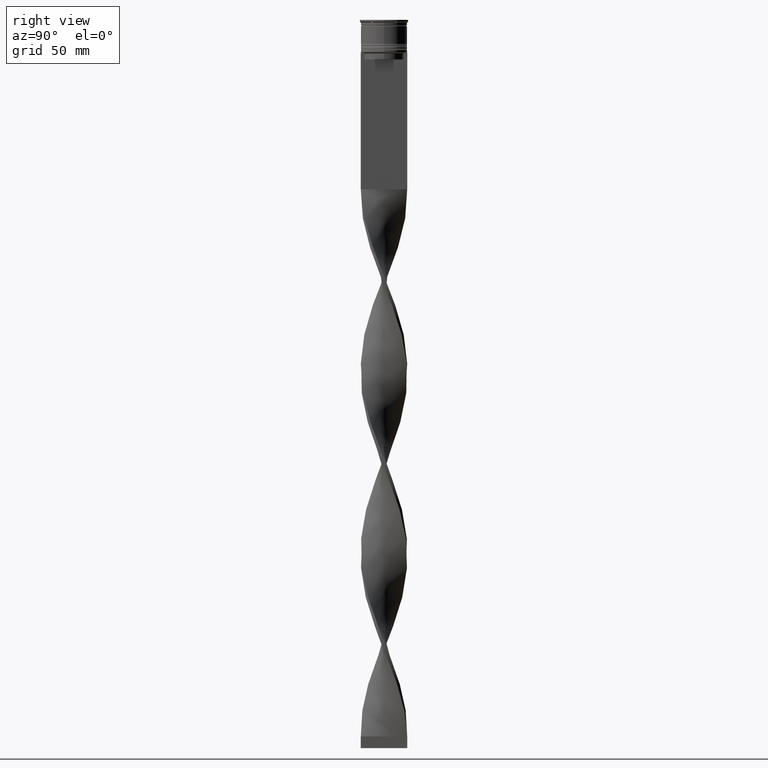
[diagram: clean part render]
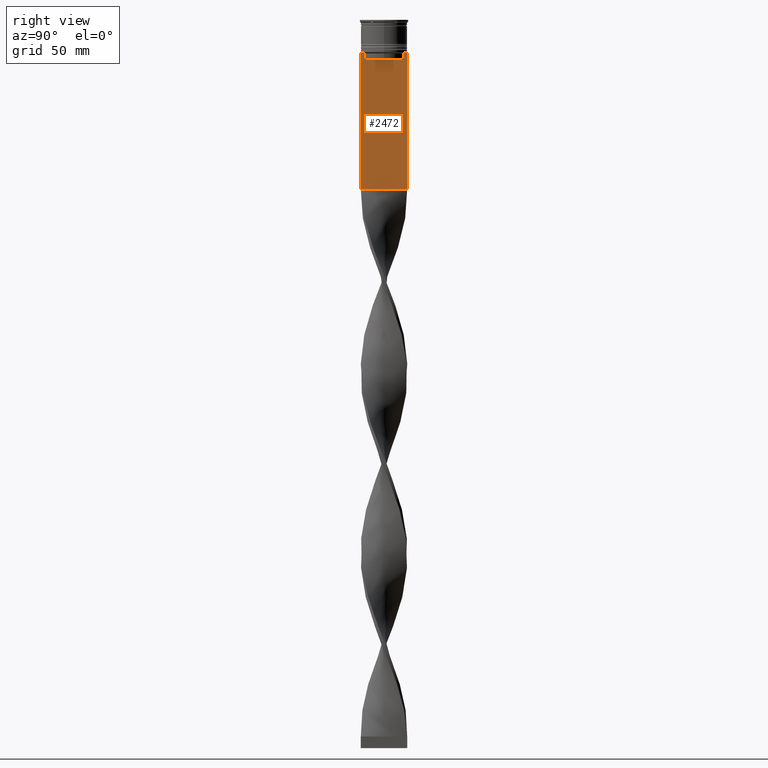
[diagram: same view with one face highlighted and labeled with its STEP entity id]
A machine part, right view. The second image highlights one B-rep face of the part: STEP entity #2472.
In plain terms, the highlighted planar face has unit normal (-1, 0, 0).
Its self-contained STEP definition (entity closure, byte-faithful):
#10 = LINE ( 'NONE', #663, #783 ) ;
#60 = VERTEX_POINT ( 'NONE', #4185 ) ;
#79 = B_SPLINE_CURVE_WITH_KNOTS ( 'NONE', 3,
 ( #1260, #3179, #1278, #212 ),
 .UNSPECIFIED., .F., .F.,
 ( 4, 4 ),
 ( 0.03866293624047253963, 0.03937282246709320616 ),
 .UNSPECIFIED. ) ;
#100 = EDGE_CURVE ( 'NONE', #2842, #1268, #4221, .T. ) ;
#108 = CARTESIAN_POINT ( 'NONE',  ( 0.7500000000000001110, 8.868342573446296839, -14.00000000000000178 ) ) ;
#154 = CARTESIAN_POINT ( 'NONE',  ( 0.7500000000000001110, -10.00000000000000533, 6.056171120131581098 ) ) ;
#161 = VERTEX_POINT ( 'NONE', #2859 ) ;
#174 = CARTESIAN_POINT ( 'NONE',  ( 0.7500000000000001110, -10.00000000000000533, -73.00000000000001421 ) ) ;
#193 = LINE ( 'NONE', #1189, #1640 ) ;
#212 = CARTESIAN_POINT ( 'NONE',  ( 0.7500000000000001110, -8.868342573446296839, -14.00000000000000178 ) ) ;
#224 = CARTESIAN_POINT ( 'NONE',  ( 0.7500000000000001110, -8.868342573446296839, -14.00000000000000178 ) ) ;
#232 = DIRECTION ( 'NONE',  ( 0.000000000000000000, -1.000000000000000000, 0.000000000000000000 ) ) ;
#283 = VECTOR ( 'NONE', #1884, 1000.000000000000000 ) ;
#355 = ORIENTED_EDGE ( 'NONE', *, *, #2693, .T. ) ;
#374 = DIRECTION ( 'NONE',  ( 0.000000000000000000, -1.000000000000000000, 0.000000000000000000 ) ) ;
#390 = LINE ( 'NONE', #1126, #2214 ) ;
#428 = EDGE_CURVE ( 'NONE', #2744, #161, #4184, .T. ) ;
#433 = DIRECTION ( 'NONE',  ( -1.000000000000000000, 0.000000000000000000, 0.000000000000000000 ) ) ;
#489 = ORIENTED_EDGE ( 'NONE', *, *, #100, .T. ) ;
#508 = DIRECTION ( 'NONE',  ( 0.000000000000000000, 1.000000000000000000, 0.000000000000000000 ) ) ;
#521 = DIRECTION ( 'NONE',  ( 0.000000000000000000, 0.000000000000000000, -1.000000000000000000 ) ) ;
#606 = LINE ( 'NONE', #2637, #1717 ) ;
#625 = DIRECTION ( 'NONE',  ( -0.000000000000000000, -0.000000000000000000, 1.000000000000000000 ) ) ;
#663 = CARTESIAN_POINT ( 'NONE',  ( 0.7500000000000001110, 8.366450860430608927, 0.000000000000000000 ) ) ;
#695 = LINE ( 'NONE', #3344, #1499 ) ;
#696 = ORIENTED_EDGE ( 'NONE', *, *, #4044, .T. ) ;
#783 = VECTOR ( 'NONE', #2031, 1000.000000000000000 ) ;
#853 = EDGE_CURVE ( 'NONE', #3147, #1339, #3798, .T. ) ;
#863 = LINE ( 'NONE', #154, #3167 ) ;
#916 = CARTESIAN_POINT ( 'NONE',  ( 0.7500000000000001110, -8.366450860430608927, -14.50000000000000000 ) ) ;
#933 = EDGE_CURVE ( 'NONE', #3942, #2372, #390, .T. ) ;
#938 = AXIS2_PLACEMENT_3D ( 'NONE', #2496, #433, #3115 ) ;
#994 = EDGE_CURVE ( 'NONE', #1339, #2487, #10, .T. ) ;
#1069 = ORIENTED_EDGE ( 'NONE', *, *, #3267, .T. ) ;
#1122 = DIRECTION ( 'NONE',  ( 0.000000000000000000, -1.000000000000000000, 0.000000000000000000 ) ) ;
#1126 = CARTESIAN_POINT ( 'NONE',  ( 0.7500000000000001110, -10.00000000000000533, -14.00000000000000178 ) ) ;
#1185 = PLANE ( 'NONE',  #938 ) ;
#1189 = CARTESIAN_POINT ( 'NONE',  ( 0.7500000000000001110, 9.999999999999998224, 6.056171120131581098 ) ) ;
#1260 = CARTESIAN_POINT ( 'NONE',  ( 0.7500000000000001110, -8.366450860430608927, -14.50000000000000000 ) ) ;
#1268 = VERTEX_POINT ( 'NONE', #2442 ) ;
#1278 = CARTESIAN_POINT ( 'NONE',  ( 0.7500000000000001110, -8.701063080777121428, -14.16668447713511725 ) ) ;
#1321 = ORIENTED_EDGE ( 'NONE', *, *, #3386, .F. ) ;
#1339 = VERTEX_POINT ( 'NONE', #3793 ) ;
#1407 = ORIENTED_EDGE ( 'NONE', *, *, #428, .T. ) ;
#1499 = VECTOR ( 'NONE', #374, 1000.000000000000000 ) ;
#1577 = CARTESIAN_POINT ( 'NONE',  ( 0.7500000000000001110, 9.999999999999998224, -14.00000000000000178 ) ) ;
#1612 = ORIENTED_EDGE ( 'NONE', *, *, #933, .T. ) ;
#1640 = VECTOR ( 'NONE', #521, 1000.000000000000000 ) ;
#1717 = VECTOR ( 'NONE', #625, 1000.000000000000000 ) ;
#1752 = CARTESIAN_POINT ( 'NONE',  ( 0.7500000000000001110, 8.366450860430608927, -17.00000000000000000 ) ) ;
#1804 = CARTESIAN_POINT ( 'NONE',  ( 0.7500000000000001110, 8.701063075415250481, -14.16668448247791545 ) ) ;
#1871 = ORIENTED_EDGE ( 'NONE', *, *, #1945, .T. ) ;
#1884 = DIRECTION ( 'NONE',  ( 0.000000000000000000, -1.000000000000000000, 0.000000000000000000 ) ) ;
#1937 = LINE ( 'NONE', #3200, #3104 ) ;
#1945 = EDGE_CURVE ( 'NONE', #1268, #60, #695, .T. ) ;
#2031 = DIRECTION ( 'NONE',  ( 0.000000000000000000, 0.000000000000000000, -1.000000000000000000 ) ) ;
#2053 = ORIENTED_EDGE ( 'NONE', *, *, #2497, .T. ) ;
#2099 = LINE ( 'NONE', #3421, #3371 ) ;
#2104 = DIRECTION ( 'NONE',  ( 0.000000000000000000, -1.000000000000000000, 0.000000000000000000 ) ) ;
#2144 = CARTESIAN_POINT ( 'NONE',  ( 0.7500000000000001110, 9.871550030263739117, -14.00000000000000178 ) ) ;
#2204 = CARTESIAN_POINT ( 'NONE',  ( 0.7500000000000001110, -8.366450860430608927, -17.00000000000000000 ) ) ;
#2214 = VECTOR ( 'NONE', #2104, 1000.000000000000000 ) ;
#2372 = VERTEX_POINT ( 'NONE', #2144 ) ;
#2421 = DIRECTION ( 'NONE',  ( 0.000000000000000000, 0.000000000000000000, -1.000000000000000000 ) ) ;
#2440 = CARTESIAN_POINT ( 'NONE',  ( 0.7500000000000001110, 8.366450860430608927, -14.50000000000000000 ) ) ;
#2442 = CARTESIAN_POINT ( 'NONE',  ( 0.7500000000000001110, -9.871550030263739117, -14.00000000000000178 ) ) ;
#2472 = ADVANCED_FACE ( 'NONE', ( #2829 ), #1185, .F. ) ;
#2487 = VERTEX_POINT ( 'NONE', #1752 ) ;
#2496 = CARTESIAN_POINT ( 'NONE',  ( 0.7500000000000001110, -10.00000000000000533, 6.056171120131581098 ) ) ;
#2497 = EDGE_CURVE ( 'NONE', #2487, #2651, #2099, .T. ) ;
#2546 = CARTESIAN_POINT ( 'NONE',  ( 0.7500000000000001110, -10.00000000000000533, -14.00000000000000178 ) ) ;
#2592 = VERTEX_POINT ( 'NONE', #916 ) ;
#2637 = CARTESIAN_POINT ( 'NONE',  ( 0.7500000000000001110, -8.366450860430608927, 0.000000000000000000 ) ) ;
#2651 = VERTEX_POINT ( 'NONE', #2204 ) ;
#2693 = EDGE_CURVE ( 'NONE', #2592, #2842, #79, .T. ) ;
#2724 = CARTESIAN_POINT ( 'NONE',  ( 0.7500000000000001110, 8.533766897779925031, -14.33335221373273605 ) ) ;
#2744 = VERTEX_POINT ( 'NONE', #2890 ) ;
#2758 = ORIENTED_EDGE ( 'NONE', *, *, #3561, .T. ) ;
#2829 = FACE_OUTER_BOUND ( 'NONE', #3757, .T. ) ;
#2842 = VERTEX_POINT ( 'NONE', #224 ) ;
#2859 = CARTESIAN_POINT ( 'NONE',  ( 0.7500000000000002220, 9.999999999999998224, -73.00000000000001421 ) ) ;
#2890 = CARTESIAN_POINT ( 'NONE',  ( 0.7500000000000001110, -10.00000000000000533, -73.00000000000001421 ) ) ;
#3104 = VECTOR ( 'NONE', #232, 1000.000000000000000 ) ;
#3115 = DIRECTION ( 'NONE',  ( 0.000000000000000000, 0.000000000000000000, 1.000000000000000000 ) ) ;
#3147 = VERTEX_POINT ( 'NONE', #3361 ) ;
#3167 = VECTOR ( 'NONE', #2421, 1000.000000000000000 ) ;
#3179 = CARTESIAN_POINT ( 'NONE',  ( 0.7500000000000001110, -8.533766903463440912, -14.33335220807192023 ) ) ;
#3200 = CARTESIAN_POINT ( 'NONE',  ( 0.7500000000000001110, -10.00000000000000533, -14.00000000000000178 ) ) ;
#3267 = EDGE_CURVE ( 'NONE', #60, #2744, #863, .T. ) ;
#3344 = CARTESIAN_POINT ( 'NONE',  ( 0.7500000000000001110, -10.00000000000000533, -14.00000000000000178 ) ) ;
#3361 = CARTESIAN_POINT ( 'NONE',  ( 0.7500000000000001110, 8.868342573446296839, -14.00000000000000178 ) ) ;
#3371 = VECTOR ( 'NONE', #1122, 1000.000000000000000 ) ;
#3386 = EDGE_CURVE ( 'NONE', #3942, #161, #193, .T. ) ;
#3421 = CARTESIAN_POINT ( 'NONE',  ( 0.7500000000000001110, 8.400000000000003908, -17.00000000000000000 ) ) ;
#3492 = ORIENTED_EDGE ( 'NONE', *, *, #853, .T. ) ;
#3561 = EDGE_CURVE ( 'NONE', #2372, #3147, #1937, .T. ) ;
#3757 = EDGE_LOOP ( 'NONE', ( #2758, #3492, #4110, #2053, #696, #355, #489, #1871, #1069, #1407, #1321, #1612 ) ) ;
#3793 = CARTESIAN_POINT ( 'NONE',  ( 0.7500000000000001110, 8.366450860430608927, -14.50000000000000000 ) ) ;
#3798 = B_SPLINE_CURVE_WITH_KNOTS ( 'NONE', 3,
 ( #108, #1804, #2724, #2440 ),
 .UNSPECIFIED., .F., .F.,
 ( 4, 4 ),
 ( 0.01512225952876174867, 0.01583070519299695222 ),
 .UNSPECIFIED. ) ;
#3942 = VERTEX_POINT ( 'NONE', #1577 ) ;
#4044 = EDGE_CURVE ( 'NONE', #2651, #2592, #606, .T. ) ;
#4110 = ORIENTED_EDGE ( 'NONE', *, *, #994, .T. ) ;
#4184 = LINE ( 'NONE', #174, #4281 ) ;
#4185 = CARTESIAN_POINT ( 'NONE',  ( 0.7500000000000001110, -10.00000000000000533, -14.00000000000000178 ) ) ;
#4221 = LINE ( 'NONE', #2546, #283 ) ;
#4281 = VECTOR ( 'NONE', #508, 1000.000000000000000 ) ;